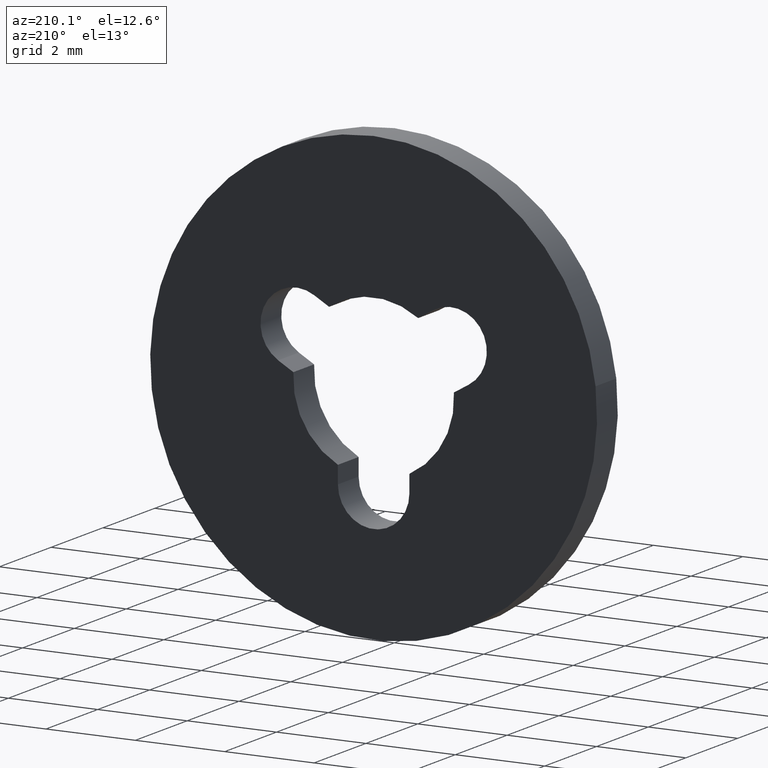
[diagram: clean part render]
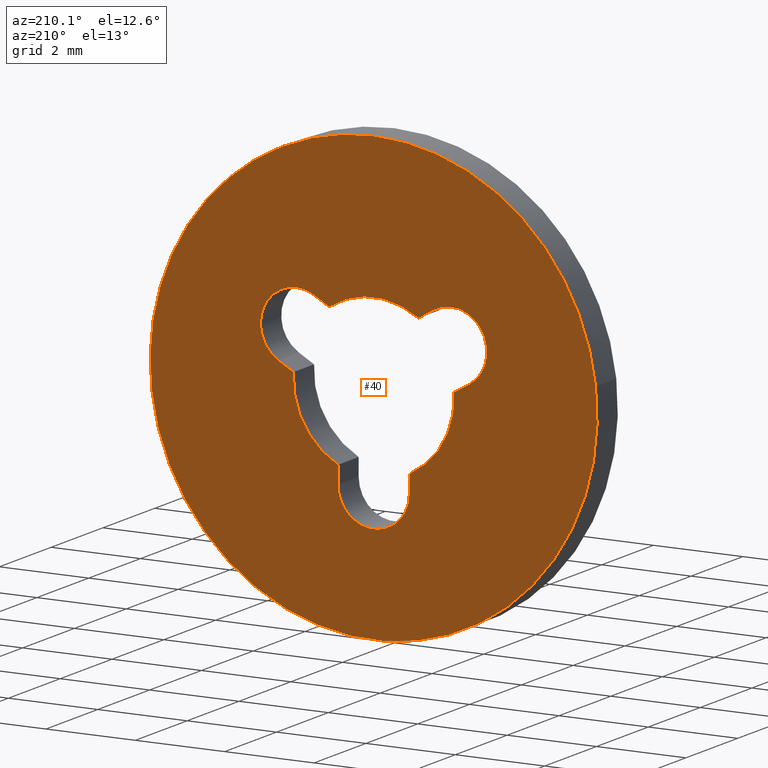
[diagram: same view with one face highlighted and labeled with its STEP entity id]
A machine part, auxiliary view. The second image highlights one B-rep face of the part: STEP entity #40.
In plain terms, the highlighted planar face has unit normal (-0, 1, 0).
Its self-contained STEP definition (entity closure, byte-faithful):
#40=ADVANCED_FACE('',(#57,#58),#56,.T.);
#56=PLANE('',#221);
#57=FACE_OUTER_BOUND('',#222,.T.);
#58=FACE_BOUND('',#223,.T.);
#218=CARTESIAN_POINT('',(-1.03923048454E+01,8.00000000000E-01,6.50000000000E+00));
#219=DIRECTION('',(-0.00000000000E+00,1.00000000000E+00,0.00000000000E+00));
#220=DIRECTION('',(1.00000000000E+00,0.00000000000E+00,0.00000000000E+00));
#221=AXIS2_PLACEMENT_3D('',#218,#219,#220);
#222=EDGE_LOOP('',(#300,#301,#302));
#223=EDGE_LOOP('',(#303,#304,#305,#306,#307,#308,#309,#310,#311,#312,#313,#314));
#300=ORIENTED_EDGE('',*,*,#388,.F.);
#301=ORIENTED_EDGE('',*,*,#389,.F.);
#302=ORIENTED_EDGE('',*,*,#390,.F.);
#303=ORIENTED_EDGE('',*,*,#391,.T.);
#304=ORIENTED_EDGE('',*,*,#392,.T.);
#305=ORIENTED_EDGE('',*,*,#393,.T.);
#306=ORIENTED_EDGE('',*,*,#394,.T.);
#307=ORIENTED_EDGE('',*,*,#395,.T.);
#308=ORIENTED_EDGE('',*,*,#396,.T.);
#309=ORIENTED_EDGE('',*,*,#397,.T.);
#310=ORIENTED_EDGE('',*,*,#398,.T.);
#311=ORIENTED_EDGE('',*,*,#399,.T.);
#312=ORIENTED_EDGE('',*,*,#400,.T.);
#313=ORIENTED_EDGE('',*,*,#401,.T.);
#314=ORIENTED_EDGE('',*,*,#402,.T.);
#388=EDGE_CURVE('',#432,#433,#434,.T.);
#389=EDGE_CURVE('',#440,#432,#441,.T.);
#390=EDGE_CURVE('',#433,#440,#447,.T.);
#391=EDGE_CURVE('',#453,#454,#455,.T.);
#392=EDGE_CURVE('',#454,#461,#462,.T.);
#393=EDGE_CURVE('',#461,#468,#469,.T.);
#394=EDGE_CURVE('',#468,#475,#476,.T.);
#395=EDGE_CURVE('',#475,#482,#483,.T.);
#396=EDGE_CURVE('',#482,#489,#490,.T.);
#397=EDGE_CURVE('',#489,#496,#497,.T.);
#398=EDGE_CURVE('',#496,#503,#504,.T.);
#399=EDGE_CURVE('',#503,#510,#511,.T.);
#400=EDGE_CURVE('',#510,#517,#518,.T.);
#401=EDGE_CURVE('',#517,#524,#525,.T.);
#402=EDGE_CURVE('',#524,#453,#531,.T.);
#432=VERTEX_POINT('',#726);
#433=VERTEX_POINT('',#727);
#434=CIRCLE('',#731,5.00000000000E+00);
#440=VERTEX_POINT('',#732);
#441=CIRCLE('',#736,5.00000000000E+00);
#447=CIRCLE('',#740,5.00000000000E+00);
#453=VERTEX_POINT('',#741);
#454=VERTEX_POINT('',#742);
#455=CIRCLE('',#746,8.00000000000E-01);
#461=VERTEX_POINT('',#747);
#462=LINE('',#748,#749);
#468=VERTEX_POINT('',#751);
#469=CIRCLE('',#755,1.80000000000E+00);
#475=VERTEX_POINT('',#756);
#476=LINE('',#757,#758);
#482=VERTEX_POINT('',#760);
#483=CIRCLE('',#764,8.00000000000E-01);
#489=VERTEX_POINT('',#765);
#490=LINE('',#766,#767);
#496=VERTEX_POINT('',#769);
#497=CIRCLE('',#773,1.80000000000E+00);
#503=VERTEX_POINT('',#774);
#504=LINE('',#775,#776);
#510=VERTEX_POINT('',#778);
#511=CIRCLE('',#782,8.00016052489E-01);
#517=VERTEX_POINT('',#783);
#518=LINE('',#784,#785);
#524=VERTEX_POINT('',#787);
#525=CIRCLE('',#791,1.80000000000E+00);
#531=LINE('',#792,#793);
#726=CARTESIAN_POINT('',(4.96504763614E+00,8.00000000000E-01,-5.90171136897E-01));
#727=CARTESIAN_POINT('',(-2.52020626590E-14,8.00000000000E-01,5.00000000000E+00));
#728=CARTESIAN_POINT('',(-6.76347866602E-13,8.00000000000E-01,-1.48592249616E-12));
#729=DIRECTION('',(7.83833658955E-17,-1.00000000000E+00,2.83194878516E-16));
#730=DIRECTION('',(1.29882216093E-13,2.83194878516E-16,1.00000000000E+00));
#731=AXIS2_PLACEMENT_3D('',#728,#729,#730);
#732=CARTESIAN_POINT('',(-4.96494555522E+00,8.00000000000E-01,5.91029300183E-01));
#733=CARTESIAN_POINT('',(-6.76347866602E-13,8.00000000000E-01,-1.48592249616E-12));
#734=DIRECTION('',(7.83833658955E-17,-1.00000000000E+00,2.83194878516E-16));
#735=DIRECTION('',(1.29882216093E-13,2.83194878516E-16,1.00000000000E+00));
#736=AXIS2_PLACEMENT_3D('',#733,#734,#735);
#737=CARTESIAN_POINT('',(-6.76347866602E-13,8.00000000000E-01,-1.48592249616E-12));
#738=DIRECTION('',(7.83833658955E-17,-1.00000000000E+00,2.83194878516E-16));
#739=DIRECTION('',(1.29882216093E-13,2.83194878516E-16,1.00000000000E+00));
#740=AXIS2_PLACEMENT_3D('',#737,#738,#739);
#741=CARTESIAN_POINT('',(-8.00000000000E-01,8.00000000000E-01,-2.00000000000E+00));
#742=CARTESIAN_POINT('',(8.00000000000E-01,8.00000000000E-01,-1.99999986037E+00));
#743=CARTESIAN_POINT('',(9.71440491724E-17,8.00000000000E-01,-2.00000000000E+00));
#744=DIRECTION('',(0.00000000000E+00,-1.00000000000E+00,0.00000000000E+00));
#745=DIRECTION('',(-1.00000000000E+00,0.00000000000E+00,1.22460635382E-16));
#746=AXIS2_PLACEMENT_3D('',#743,#744,#745);
#747=CARTESIAN_POINT('',(8.00000000000E-01,8.00000000000E-01,-1.61245154966E+00));
#748=CARTESIAN_POINT('',(8.00000000000E-01,8.00000000000E-01,-1.99999986037E+00));
#749=VECTOR('',#750,3.87548310714E-01);
#750=DIRECTION('',(6.18782656741E-14,0.00000000000E+00,1.00000000000E+00));
#751=CARTESIAN_POINT('',(1.79642349236E+00,8.00000000000E-01,1.13413562169E-01));
#752=CARTESIAN_POINT('',(8.88178419700E-16,8.00000000000E-01,-5.55111512313E-16));
#753=DIRECTION('',(0.00000000000E+00,-1.00000000000E+00,0.00000000000E+00));
#754=DIRECTION('',(-4.44444444444E-01,-0.00000000000E+00,8.95806416478E-01));
#755=AXIS2_PLACEMENT_3D('',#752,#753,#754);
#756=CARTESIAN_POINT('',(2.13666155815E+00,8.00000000000E-01,3.09833392821E-01));
#757=CARTESIAN_POINT('',(1.79642349236E+00,8.00000000000E-01,1.13413562169E-01));
#758=VECTOR('',#759,3.92864723900E-01);
#759=DIRECTION('',(8.66043818878E-01,0.00000000000E+00,4.99968102766E-01));
#760=CARTESIAN_POINT('',(1.32753844185E+00,8.00000000000E-01,1.69016660718E+00));
#761=CARTESIAN_POINT('',(1.73210000000E+00,8.00000000000E-01,1.00000000000E+00));
#762=DIRECTION('',(-7.98165477205E-17,-1.00000000000E+00,-4.67868288270E-17));
#763=DIRECTION('',(5.05701947691E-01,-7.15904271516E-33,-8.62708258974E-01));
#764=AXIS2_PLACEMENT_3D('',#761,#762,#763);
#765=CARTESIAN_POINT('',(9.96449962194E-01,8.00000000000E-01,1.49902884323E+00));
#766=CARTESIAN_POINT('',(1.32753844185E+00,8.00000000000E-01,1.69016660718E+00));
#767=VECTOR('',#768,3.82299916510E-01);
#768=DIRECTION('',(-8.66043818878E-01,0.00000000000E+00,-4.99968102766E-01));
#769=CARTESIAN_POINT('',(-9.96449955275E-01,8.00000000000E-01,1.49902884783E+00));
#770=CARTESIAN_POINT('',(-5.71426373556E-16,8.00000000000E-01,3.77475828373E-15));
#771=DIRECTION('',(-1.70722483166E-16,-1.00000000000E+00,-2.56829681533E-16));
#772=DIRECTION('',(-5.53583312330E-01,3.08395284618E-16,-8.32793801796E-01));
#773=AXIS2_PLACEMENT_3D('',#770,#771,#772);
#774=CARTESIAN_POINT('',(-1.33200000000E+00,8.00000000000E-01,1.69280000000E+00));
#775=CARTESIAN_POINT('',(-9.96449955275E-01,8.00000000000E-01,1.49902884783E+00));
#776=VECTOR('',#777,3.87480440703E-01);
#777=DIRECTION('',(-8.65979310119E-01,0.00000000000E+00,5.00079828073E-01));
#778=CARTESIAN_POINT('',(-2.12312334425E+00,8.00000000000E-01,3.02073969353E-01));
#779=CARTESIAN_POINT('',(-1.73207188998E+00,8.00000000000E-01,1.00000265078E+00));
#780=DIRECTION('',(-7.98188607277E-17,-1.00000000000E+00,4.60932515168E-17));
#781=DIRECTION('',(5.00079828073E-01,1.95274634803E-32,8.65979310119E-01));
#782=AXIS2_PLACEMENT_3D('',#779,#780,#781);
#783=CARTESIAN_POINT('',(-1.79642349212E+00,8.00000000000E-01,1.13413566068E-01));
#784=CARTESIAN_POINT('',(-2.12312334425E+00,8.00000000000E-01,3.02073969353E-01));
#785=VECTOR('',#786,3.77260574601E-01);
#786=DIRECTION('',(8.65979310119E-01,0.00000000000E+00,-5.00079828073E-01));
#787=CARTESIAN_POINT('',(-8.00000000000E-01,8.00000000000E-01,-1.61245154966E+00));
#788=CARTESIAN_POINT('',(4.44089209850E-16,8.00000000000E-01,-2.22044604925E-16));
#789=DIRECTION('',(-3.11292680307E-16,-1.00000000000E+00,-3.61682614948E-17));
#790=DIRECTION('',(9.98013051176E-01,-3.08395284618E-16,-6.30075367044E-02));
#791=AXIS2_PLACEMENT_3D('',#788,#789,#790);
#792=CARTESIAN_POINT('',(-8.00000000000E-01,8.00000000000E-01,-1.61245154966E+00));
#793=VECTOR('',#794,3.87548450340E-01);
#794=DIRECTION('',(0.00000000000E+00,0.00000000000E+00,-1.00000000000E+00));